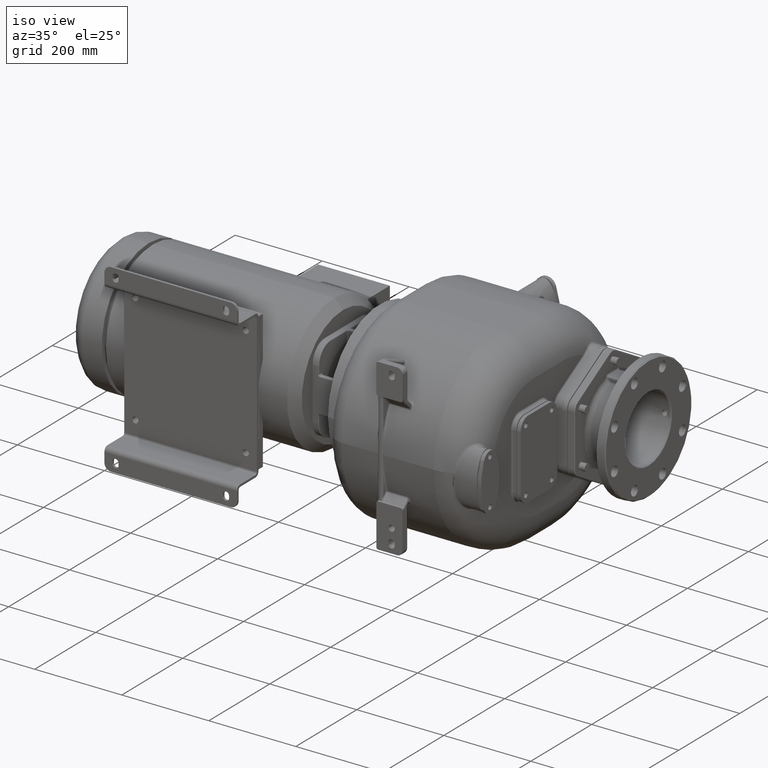
[diagram: clean part render]
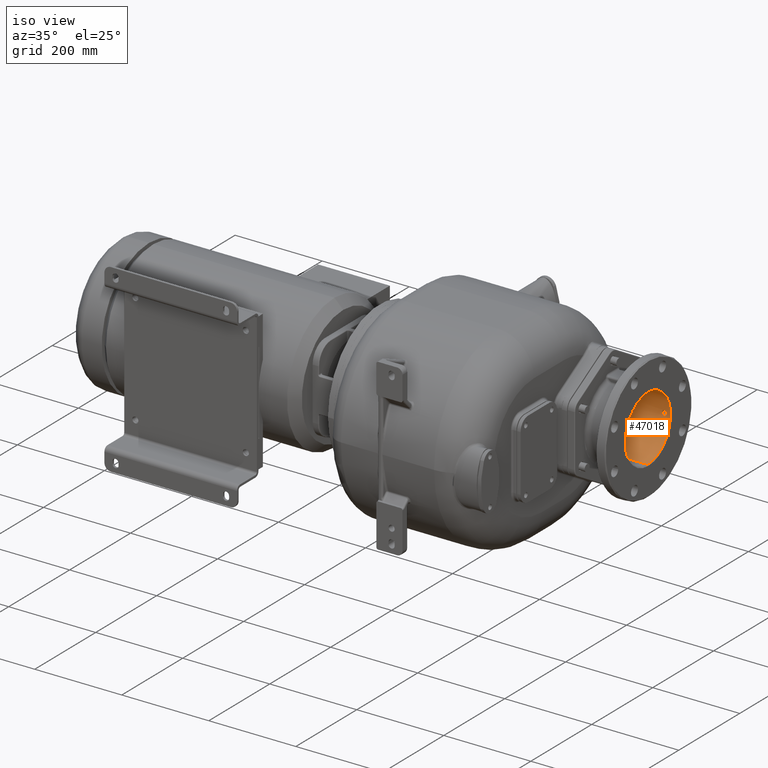
[diagram: same view with one face highlighted and labeled with its STEP entity id]
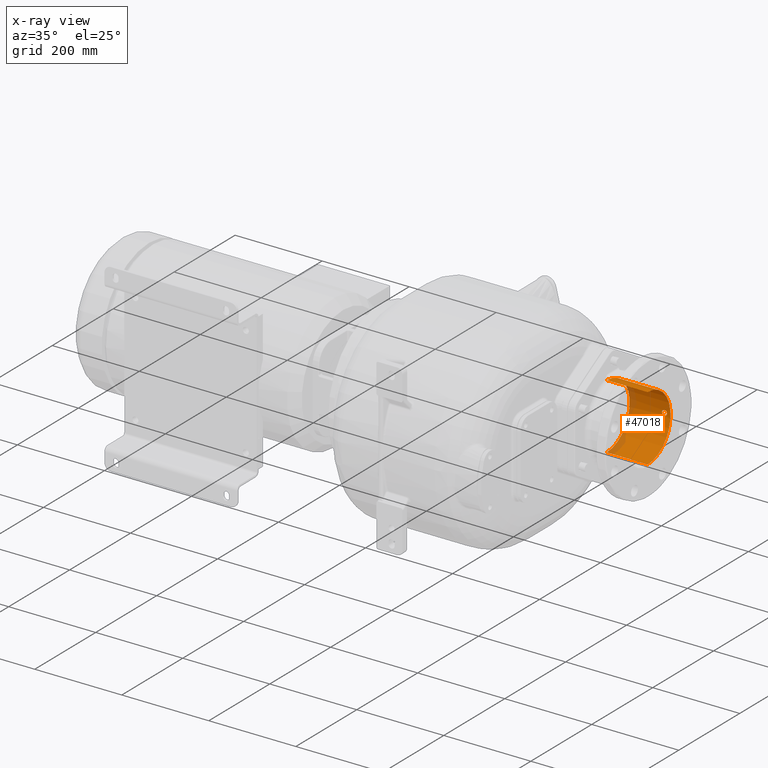
[diagram: x-ray of the same camera — body ghosted, the highlighted face saturated]
A machine part, iso view. The second image highlights one B-rep face of the part: STEP entity #47018.
The next image is the same camera in x-ray: the body ghosted, the highlighted face saturated — about 11% of this face is hidden behind the body in this view.
In plain terms, the highlighted cylindrical surface (partial cylindrical patch) has radius 75 mm, axis along (1, 0, 0).
Its self-contained STEP definition (entity closure, byte-faithful):
#43698=CARTESIAN_POINT('',(3.015E2,4.1E2,-2.6E1));
#43699=DIRECTION('',(1.E0,0.E0,0.E0));
#43700=DIRECTION('',(0.E0,0.E0,-1.E0));
#43701=AXIS2_PLACEMENT_3D('',#43698,#43699,#43700);
#43703=DIRECTION('',(-1.E0,0.E0,0.E0));
#43704=VECTOR('',#43703,9.4E1);
#43705=CARTESIAN_POINT('',(3.015E2,4.1E2,-1.01E2));
#43706=LINE('',#43705,#43704);
#43707=CARTESIAN_POINT('',(2.075E2,4.1E2,-2.6E1));
#43708=DIRECTION('',(-1.E0,0.E0,0.E0));
#43709=DIRECTION('',(0.E0,0.E0,1.E0));
#43710=AXIS2_PLACEMENT_3D('',#43707,#43708,#43709);
#43712=CARTESIAN_POINT('',(2.875E2,4.847675731852E2,-3.19E1));
#43713=CARTESIAN_POINT('',(2.874256253324E2,4.847675731852E2,-3.19E1));
#43714=CARTESIAN_POINT('',(2.872769971139E2,4.847677950349E2,
-3.189718962676E1));
#43715=CARTESIAN_POINT('',(2.870542748607E2,4.847687914458E2,
-3.188454900538E1));
#43716=CARTESIAN_POINT('',(2.868322025089E2,4.847704458884E2,
-3.186349993345E1));
#43717=CARTESIAN_POINT('',(2.866110566696E2,4.847727490731E2,
-3.183406984694E1));
#43718=CARTESIAN_POINT('',(2.863911509017E2,4.847756881395E2,
-3.179629614294E1));
#43719=CARTESIAN_POINT('',(2.861728012848E2,4.847792464365E2,
-3.175022985126E1));
#43720=CARTESIAN_POINT('',(2.859563192148E2,4.847834038050E2,
-3.169593316761E1));
#43721=CARTESIAN_POINT('',(2.857420072291E2,4.847881368035E2,
-3.163347784342E1));
#43722=CARTESIAN_POINT('',(2.855301690121E2,4.847934186559E2,
-3.156294746120E1));
#43723=CARTESIAN_POINT('',(2.853211020802E2,4.847992195555E2,
-3.148443521025E1));
#43724=CARTESIAN_POINT('',(2.851151171367E2,4.848055062294E2,
-3.139805199805E1));
#43725=CARTESIAN_POINT('',(2.849125111418E2,4.848122427986E2,
-3.130391737893E1));
#43726=CARTESIAN_POINT('',(2.847135742728E2,4.848193908697E2,
-3.120216073273E1));
#43727=CARTESIAN_POINT('',(2.845185943045E2,4.848269095712E2,-3.109292369E1));
#43728=CARTESIAN_POINT('',(2.843278514817E2,4.848347559711E2,
-3.097635721820E1));
#43729=CARTESIAN_POINT('',(2.841416357851E2,4.848428845377E2,
-3.085263341929E1));
#43730=CARTESIAN_POINT('',(2.839602183976E2,4.848512485343E2,
-3.072192878889E1));
#43731=CARTESIAN_POINT('',(2.837838635841E2,4.848597998581E2,
-3.058443002453E1));
#43732=CARTESIAN_POINT('',(2.836128292208E2,4.848684892538E2,
-3.044033502036E1));
#43733=CARTESIAN_POINT('',(2.834473639344E2,4.848772667399E2,
-3.028985011264E1));
#43734=CARTESIAN_POINT('',(2.832877208525E2,4.848860811060E2,
-3.013320416943E1));
#43735=CARTESIAN_POINT('',(2.831341310210E2,4.848948816069E2,
-2.997062457919E1));
#43736=CARTESIAN_POINT('',(2.829868176328E2,4.849036175407E2,
-2.980234857284E1));
#43737=CARTESIAN_POINT('',(2.828459939175E2,4.849122386285E2,
-2.962862168409E1));
#43738=CARTESIAN_POINT('',(2.827118629284E2,4.849206953184E2,
-2.944969672747E1));
#43739=CARTESIAN_POINT('',(2.825846261491E2,4.849289384811E2,
-2.926584729649E1));
#43740=CARTESIAN_POINT('',(2.824644628815E2,4.849369209937E2,
-2.907733965712E1));
#43741=CARTESIAN_POINT('',(2.823515434607E2,4.849445971936E2,
-2.888444848286E1));
#43742=CARTESIAN_POINT('',(2.822460262785E2,4.849519233101E2,
-2.868745280506E1));
#43743=CARTESIAN_POINT('',(2.821480596803E2,4.849588575771E2,
-2.848663836888E1));
#43744=CARTESIAN_POINT('',(2.820577852624E2,4.849653602019E2,
-2.828230731335E1));
#43745=CARTESIAN_POINT('',(2.819753250425E2,4.849713944994E2,
-2.807475005706E1));
#43746=CARTESIAN_POINT('',(2.819007915329E2,4.849769263830E2,
-2.786426376845E1));
#43747=CARTESIAN_POINT('',(2.818342850890E2,4.849819247288E2,
-2.765114625277E1));
#43748=CARTESIAN_POINT('',(2.817758964622E2,4.849863613457E2,
-2.743570253037E1));
#43749=CARTESIAN_POINT('',(2.817257063209E2,4.849902111481E2,
-2.721824853113E1));
#43750=CARTESIAN_POINT('',(2.816837796659E2,4.849934527142E2,
-2.699908628844E1));
#43751=CARTESIAN_POINT('',(2.816501717802E2,4.849960679440E2,
-2.677852347111E1));
#43752=CARTESIAN_POINT('',(2.816249265851E2,4.849980422725E2,
-2.655686548787E1));
#43753=CARTESIAN_POINT('',(2.816080781860E2,4.849993646215E2,
-2.633442717336E1));
#43754=CARTESIAN_POINT('',(2.815996488087E2,4.850000276148E2,
-2.611152748129E1));
#43755=CARTESIAN_POINT('',(2.815996488087E2,4.850000276148E2,
-2.588847251878E1));
#43756=CARTESIAN_POINT('',(2.816080781860E2,4.849993646215E2,
-2.566557282615E1));
#43757=CARTESIAN_POINT('',(2.816249265852E2,4.849980422725E2,
-2.544313451103E1));
#43758=CARTESIAN_POINT('',(2.816501717803E2,4.849960679440E2,
-2.522147652821E1));
#43759=CARTESIAN_POINT('',(2.816837796660E2,4.849934527142E2,
-2.500091371082E1));
#43760=CARTESIAN_POINT('',(2.817257063211E2,4.849902111481E2,
-2.478175146809E1));
#43761=CARTESIAN_POINT('',(2.817758964625E2,4.849863613457E2,
-2.456429746832E1));
#43762=CARTESIAN_POINT('',(2.818342850894E2,4.849819247287E2,
-2.434885374579E1));
#43763=CARTESIAN_POINT('',(2.819007915333E2,4.849769263830E2,
-2.413573623051E1));
#43764=CARTESIAN_POINT('',(2.819753250428E2,4.849713944993E2,
-2.392524994218E1));
#43765=CARTESIAN_POINT('',(2.820577852627E2,4.849653602019E2,
-2.371769268587E1));
#43766=CARTESIAN_POINT('',(2.821480596808E2,4.849588575771E2,
-2.351336162999E1));
#43767=CARTESIAN_POINT('',(2.822460262793E2,4.849519233100E2,
-2.331254719336E1));
#43768=CARTESIAN_POINT('',(2.823515434611E2,4.849445971935E2,
-2.311555151643E1));
#43769=CARTESIAN_POINT('',(2.824644628819E2,4.849369209937E2,
-2.292266034216E1));
#43770=CARTESIAN_POINT('',(2.825846261496E2,4.849289384811E2,
-2.273415270269E1));
#43771=CARTESIAN_POINT('',(2.827118629291E2,4.849206953184E2,
-2.255030327163E1));
#43772=CARTESIAN_POINT('',(2.828459939185E2,4.849122386284E2,
-2.237137831460E1));
#43773=CARTESIAN_POINT('',(2.829868176334E2,4.849036175407E2,
-2.219765142652E1));
#43774=CARTESIAN_POINT('',(2.831341310215E2,4.848948816068E2,
-2.202937542020E1));
#43775=CARTESIAN_POINT('',(2.832877208531E2,4.848860811059E2,
-2.186679582999E1));
#43776=CARTESIAN_POINT('',(2.834473639356E2,4.848772667399E2,
-2.171014988622E1));
#43777=CARTESIAN_POINT('',(2.836128292217E2,4.848684892537E2,
-2.155966497890E1));
#43778=CARTESIAN_POINT('',(2.837838635849E2,4.848597998581E2,
-2.141556997485E1));
#43779=CARTESIAN_POINT('',(2.839602183982E2,4.848512485343E2,
-2.127807121064E1));
#43780=CARTESIAN_POINT('',(2.841416357857E2,4.848428845377E2,
-2.114736658029E1));
#43781=CARTESIAN_POINT('',(2.843278514830E2,4.848347559711E2,
-2.102364278095E1));
#43782=CARTESIAN_POINT('',(2.845185943056E2,4.848269095712E2,
-2.090707630936E1));
#43783=CARTESIAN_POINT('',(2.847135742734E2,4.848193908697E2,
-2.079783926691E1));
#43784=CARTESIAN_POINT('',(2.849125111425E2,4.848122427986E2,
-2.069608262073E1));
#43785=CARTESIAN_POINT('',(2.851151171377E2,4.848055062294E2,
-2.060194800151E1));
#43786=CARTESIAN_POINT('',(2.853211020813E2,4.847992195555E2,
-2.051556478929E1));
#43787=CARTESIAN_POINT('',(2.855301690134E2,4.847934186559E2,
-2.043705253835E1));
#43788=CARTESIAN_POINT('',(2.857420072298E2,4.847881368034E2,
-2.036652215638E1));
#43789=CARTESIAN_POINT('',(2.859563192155E2,4.847834038050E2,
-2.030406683220E1));
#43790=CARTESIAN_POINT('',(2.861728012856E2,4.847792464365E2,
-2.024977014855E1));
#43791=CARTESIAN_POINT('',(2.863911509036E2,4.847756881395E2,
-2.020370385671E1));
#43792=CARTESIAN_POINT('',(2.866110566703E2,4.847727490731E2,
-2.016593015296E1));
#43793=CARTESIAN_POINT('',(2.868322025098E2,4.847704458884E2,
-2.013650006645E1));
#43794=CARTESIAN_POINT('',(2.870542748614E2,4.847687914458E2,
-2.011545099456E1));
#43795=CARTESIAN_POINT('',(2.872769971148E2,4.847677950348E2,
-2.010281037321E1));
#43796=CARTESIAN_POINT('',(2.874256253328E2,4.847675731852E2,-2.01E1));
#43797=CARTESIAN_POINT('',(2.875E2,4.847675731852E2,-2.01E1));
#43799=CARTESIAN_POINT('',(2.875E2,4.847675731852E2,-2.01E1));
#43800=CARTESIAN_POINT('',(2.875743746676E2,4.847675731852E2,-2.01E1));
#43801=CARTESIAN_POINT('',(2.877230028861E2,4.847677950349E2,
-2.010281037324E1));
#43802=CARTESIAN_POINT('',(2.879457251393E2,4.847687914458E2,
-2.011545099462E1));
#43803=CARTESIAN_POINT('',(2.881677974911E2,4.847704458884E2,
-2.013650006655E1));
#43804=CARTESIAN_POINT('',(2.883889433304E2,4.847727490731E2,
-2.016593015306E1));
#43805=CARTESIAN_POINT('',(2.886088490982E2,4.847756881395E2,
-2.020370385705E1));
#43806=CARTESIAN_POINT('',(2.888271987152E2,4.847792464365E2,
-2.024977014873E1));
#43807=CARTESIAN_POINT('',(2.890436807852E2,4.847834038050E2,
-2.030406683239E1));
#43808=CARTESIAN_POINT('',(2.892579927708E2,4.847881368035E2,
-2.036652215657E1));
#43809=CARTESIAN_POINT('',(2.894698309878E2,4.847934186559E2,
-2.043705253878E1));
#43810=CARTESIAN_POINT('',(2.896788979197E2,4.847992195555E2,
-2.051556478972E1));
#43811=CARTESIAN_POINT('',(2.898848828632E2,4.848055062294E2,
-2.060194800192E1));
#43812=CARTESIAN_POINT('',(2.900874888581E2,4.848122427986E2,
-2.069608262105E1));
#43813=CARTESIAN_POINT('',(2.902864257272E2,4.848193908697E2,
-2.079783926724E1));
#43814=CARTESIAN_POINT('',(2.904814056954E2,4.848269095712E2,
-2.090707630996E1));
#43815=CARTESIAN_POINT('',(2.906721485182E2,4.848347559711E2,
-2.102364278174E1));
#43816=CARTESIAN_POINT('',(2.908583642149E2,4.848428845377E2,
-2.114736658067E1));
#43817=CARTESIAN_POINT('',(2.910397816024E2,4.848512485343E2,
-2.127807121107E1));
#43818=CARTESIAN_POINT('',(2.912161364158E2,4.848597998581E2,
-2.141556997542E1));
#43819=CARTESIAN_POINT('',(2.913871707791E2,4.848684892538E2,
-2.155966497956E1));
#43820=CARTESIAN_POINT('',(2.915526360655E2,4.848772667399E2,
-2.171014988726E1));
#43821=CARTESIAN_POINT('',(2.917122791474E2,4.848860811060E2,
-2.186679583050E1));
#43822=CARTESIAN_POINT('',(2.918658689790E2,4.848948816069E2,
-2.202937542075E1));
#43823=CARTESIAN_POINT('',(2.920131823671E2,4.849036175407E2,
-2.219765142708E1));
#43824=CARTESIAN_POINT('',(2.921540060824E2,4.849122386285E2,
-2.237137831577E1));
#43825=CARTESIAN_POINT('',(2.922881370715E2,4.849206953184E2,
-2.255030327240E1));
#43826=CARTESIAN_POINT('',(2.924153738508E2,4.849289384811E2,
-2.273415270342E1));
#43827=CARTESIAN_POINT('',(2.925355371184E2,4.849369209937E2,
-2.292266034279E1));
#43828=CARTESIAN_POINT('',(2.926484565393E2,4.849445971936E2,
-2.311555151704E1));
#43829=CARTESIAN_POINT('',(2.927539737214E2,4.849519233101E2,
-2.331254719474E1));
#43830=CARTESIAN_POINT('',(2.928519403196E2,4.849588575771E2,
-2.351336163096E1));
#43831=CARTESIAN_POINT('',(2.929422147376E2,4.849653602019E2,
-2.371769268653E1));
#43832=CARTESIAN_POINT('',(2.930246749575E2,4.849713944994E2,
-2.392524994282E1));
#43833=CARTESIAN_POINT('',(2.930992084670E2,4.849769263830E2,
-2.413573623141E1));
#43834=CARTESIAN_POINT('',(2.931657149109E2,4.849819247288E2,
-2.434885374696E1));
#43835=CARTESIAN_POINT('',(2.932241035377E2,4.849863613457E2,
-2.456429746944E1));
#43836=CARTESIAN_POINT('',(2.932742936791E2,4.849902111481E2,
-2.478175146874E1));
#43837=CARTESIAN_POINT('',(2.933162203341E2,4.849934527142E2,
-2.500091371145E1));
#43838=CARTESIAN_POINT('',(2.933498282198E2,4.849960679440E2,
-2.522147652881E1));
#43839=CARTESIAN_POINT('',(2.933750734149E2,4.849980422725E2,
-2.544313451207E1));
#43840=CARTESIAN_POINT('',(2.933919218140E2,4.849993646215E2,
-2.566557282658E1));
#43841=CARTESIAN_POINT('',(2.934003511913E2,4.850000276148E2,
-2.588847251885E1));
#43842=CARTESIAN_POINT('',(2.934003511913E2,4.850000276148E2,
-2.611152748140E1));
#43843=CARTESIAN_POINT('',(2.933919218140E2,4.849993646215E2,
-2.633442717404E1));
#43844=CARTESIAN_POINT('',(2.933750734148E2,4.849980422725E2,
-2.655686548932E1));
#43845=CARTESIAN_POINT('',(2.933498282196E2,4.849960679439E2,
-2.677852347196E1));
#43846=CARTESIAN_POINT('',(2.933162203340E2,4.849934527142E2,
-2.699908628932E1));
#43847=CARTESIAN_POINT('',(2.932742936789E2,4.849902111481E2,
-2.721824853205E1));
#43848=CARTESIAN_POINT('',(2.932241035374E2,4.849863613457E2,
-2.743570253186E1));
#43849=CARTESIAN_POINT('',(2.931657149105E2,4.849819247287E2,
-2.765114625449E1));
#43850=CARTESIAN_POINT('',(2.930992084667E2,4.849769263830E2,
-2.786426376962E1));
#43851=CARTESIAN_POINT('',(2.930246749572E2,4.849713944993E2,
-2.807475005794E1));
#43852=CARTESIAN_POINT('',(2.929422147373E2,4.849653602019E2,
-2.828230731424E1));
#43853=CARTESIAN_POINT('',(2.928519403191E2,4.849588575770E2,
-2.848663837017E1));
#43854=CARTESIAN_POINT('',(2.927539737206E2,4.849519233100E2,
-2.868745280685E1));
#43855=CARTESIAN_POINT('',(2.926484565389E2,4.849445971935E2,
-2.888444848367E1));
#43856=CARTESIAN_POINT('',(2.925355371180E2,4.849369209937E2,
-2.907733965793E1));
#43857=CARTESIAN_POINT('',(2.924153738503E2,4.849289384811E2,
-2.926584729740E1));
#43858=CARTESIAN_POINT('',(2.922881370708E2,4.849206953184E2,
-2.944969672850E1));
#43859=CARTESIAN_POINT('',(2.921540060813E2,4.849122386284E2,
-2.962862168554E1));
#43860=CARTESIAN_POINT('',(2.920131823666E2,4.849036175407E2,
-2.980234857356E1));
#43861=CARTESIAN_POINT('',(2.918658689784E2,4.848948816068E2,
-2.997062457987E1));
#43862=CARTESIAN_POINT('',(2.917122791469E2,4.848860811059E2,
-3.013320417008E1));
#43863=CARTESIAN_POINT('',(2.915526360643E2,4.848772667398E2,
-3.028985011388E1));
#43864=CARTESIAN_POINT('',(2.913871707782E2,4.848684892537E2,
-3.044033502118E1));
#43865=CARTESIAN_POINT('',(2.912161364151E2,4.848597998581E2,
-3.058443002519E1));
#43866=CARTESIAN_POINT('',(2.910397816017E2,4.848512485342E2,
-3.072192878941E1));
#43867=CARTESIAN_POINT('',(2.908583642142E2,4.848428845377E2,
-3.085263341975E1));
#43868=CARTESIAN_POINT('',(2.906721485169E2,4.848347559711E2,
-3.097635721911E1));
#43869=CARTESIAN_POINT('',(2.904814056943E2,4.848269095712E2,
-3.109292369068E1));
#43870=CARTESIAN_POINT('',(2.902864257265E2,4.848193908697E2,
-3.120216073311E1));
#43871=CARTESIAN_POINT('',(2.900874888574E2,4.848122427986E2,
-3.130391737929E1));
#43872=CARTESIAN_POINT('',(2.898848828622E2,4.848055062293E2,
-3.139805199852E1));
#43873=CARTESIAN_POINT('',(2.896788979186E2,4.847992195555E2,
-3.148443521074E1));
#43874=CARTESIAN_POINT('',(2.894698309865E2,4.847934186558E2,
-3.156294746166E1));
#43875=CARTESIAN_POINT('',(2.892579927702E2,4.847881368034E2,
-3.163347784363E1));
#43876=CARTESIAN_POINT('',(2.890436807845E2,4.847834038050E2,
-3.169593316781E1));
#43877=CARTESIAN_POINT('',(2.888271987144E2,4.847792464365E2,
-3.175022985146E1));
#43878=CARTESIAN_POINT('',(2.886088490964E2,4.847756881395E2,
-3.179629614330E1));
#43879=CARTESIAN_POINT('',(2.883889433297E2,4.847727490731E2,
-3.183406984704E1));
#43880=CARTESIAN_POINT('',(2.881677974902E2,4.847704458884E2,
-3.186349993356E1));
#43881=CARTESIAN_POINT('',(2.879457251386E2,4.847687914458E2,
-3.188454900544E1));
#43882=CARTESIAN_POINT('',(2.877230028852E2,4.847677950348E2,
-3.189718962679E1));
#43883=CARTESIAN_POINT('',(2.875743746672E2,4.847675731852E2,-3.19E1));
#43884=CARTESIAN_POINT('',(2.875E2,4.847675731852E2,-3.19E1));
#43899=DIRECTION('',(-1.E0,0.E0,0.E0));
#43900=VECTOR('',#43899,9.4E1);
#43901=CARTESIAN_POINT('',(3.015E2,4.1E2,4.9E1));
#43902=LINE('',#43901,#43900);
#46346=CARTESIAN_POINT('',(3.015E2,4.1E2,-1.01E2));
#46347=CARTESIAN_POINT('',(3.015E2,4.1E2,4.9E1));
#46348=VERTEX_POINT('',#46346);
#46349=VERTEX_POINT('',#46347);
#46354=CARTESIAN_POINT('',(2.075E2,4.1E2,4.9E1));
#46355=CARTESIAN_POINT('',(2.075E2,4.1E2,-1.01E2));
#46356=VERTEX_POINT('',#46354);
#46357=VERTEX_POINT('',#46355);
#46362=VERTEX_POINT('',#43712);
#46363=VERTEX_POINT('',#43797);
#46998=CARTESIAN_POINT('',(3.065E2,4.1E2,-2.6E1));
#46999=DIRECTION('',(1.E0,0.E0,0.E0));
#47000=DIRECTION('',(0.E0,0.E0,-1.E0));
#47001=AXIS2_PLACEMENT_3D('',#46998,#46999,#47000);
#47002=CYLINDRICAL_SURFACE('',#47001,7.5E1);
#47004=ORIENTED_EDGE('',*,*,#47003,.F.);
#47006=ORIENTED_EDGE('',*,*,#47005,.T.);
#47007=ORIENTED_EDGE('',*,*,#46988,.F.);
#47009=ORIENTED_EDGE('',*,*,#47008,.F.);
#47010=EDGE_LOOP('',(#47004,#47006,#47007,#47009));
#47011=FACE_OUTER_BOUND('',#47010,.F.);
#47013=ORIENTED_EDGE('',*,*,#47012,.F.);
#47015=ORIENTED_EDGE('',*,*,#47014,.F.);
#47016=EDGE_LOOP('',(#47013,#47015));
#47017=FACE_BOUND('',#47016,.F.);
#47018=ADVANCED_FACE('',(#47011,#47017),#47002,.F.);
#43702=CIRCLE('',#43701,7.5E1);
#43711=CIRCLE('',#43710,7.5E1);
#43798=B_SPLINE_CURVE_WITH_KNOTS('',3,(#43712,#43713,#43714,#43715,#43716,
#43717,#43718,#43719,#43720,#43721,#43722,#43723,#43724,#43725,#43726,#43727,
#43728,#43729,#43730,#43731,#43732,#43733,#43734,#43735,#43736,#43737,#43738,
#43739,#43740,#43741,#43742,#43743,#43744,#43745,#43746,#43747,#43748,#43749,
#43750,#43751,#43752,#43753,#43754,#43755,#43756,#43757,#43758,#43759,#43760,
#43761,#43762,#43763,#43764,#43765,#43766,#43767,#43768,#43769,#43770,#43771,
#43772,#43773,#43774,#43775,#43776,#43777,#43778,#43779,#43780,#43781,#43782,
#43783,#43784,#43785,#43786,#43787,#43788,#43789,#43790,#43791,#43792,#43793,
#43794,#43795,#43796,#43797),.UNSPECIFIED.,.F.,.F.,(4,1,1,1,1,1,1,1,1,1,1,1,1,1,
1,1,1,1,1,1,1,1,1,1,1,1,1,1,1,1,1,1,1,1,1,1,1,1,1,1,1,1,1,1,1,1,1,1,1,1,1,1,1,1,
1,1,1,1,1,1,1,1,1,1,1,1,1,1,1,1,1,1,1,1,1,1,1,1,1,1,1,1,1,4),(0.E0,
1.204819277108E-2,2.409638554217E-2,3.614457831325E-2,4.819277108434E-2,
6.024096385542E-2,7.228915662651E-2,8.433734939759E-2,9.638554216867E-2,
1.084337349398E-1,1.204819277108E-1,1.325301204819E-1,1.445783132530E-1,
1.566265060241E-1,1.686746987952E-1,1.807228915663E-1,1.927710843373E-1,
2.048192771084E-1,2.168674698795E-1,2.289156626506E-1,2.409638554217E-1,
2.530120481928E-1,2.650602409639E-1,2.771084337349E-1,2.891566265060E-1,
3.012048192771E-1,3.132530120482E-1,3.253012048193E-1,3.373493975904E-1,
3.493975903614E-1,3.614457831325E-1,3.734939759036E-1,3.855421686747E-1,
3.975903614458E-1,4.096385542169E-1,4.216867469880E-1,4.337349397590E-1,
4.457831325301E-1,4.578313253012E-1,4.698795180723E-1,4.819277108434E-1,
4.939759036145E-1,5.060240963855E-1,5.180722891566E-1,5.301204819277E-1,
5.421686746988E-1,5.542168674699E-1,5.662650602410E-1,5.783132530120E-1,
5.903614457831E-1,6.024096385542E-1,6.144578313253E-1,6.265060240964E-1,
6.385542168675E-1,6.506024096386E-1,6.626506024096E-1,6.746987951807E-1,
6.867469879518E-1,6.987951807229E-1,7.108433734940E-1,7.228915662651E-1,
7.349397590361E-1,7.469879518072E-1,7.590361445783E-1,7.710843373494E-1,
7.831325301205E-1,7.951807228916E-1,8.072289156627E-1,8.192771084337E-1,
8.313253012048E-1,8.433734939759E-1,8.554216867470E-1,8.674698795181E-1,
8.795180722892E-1,8.915662650602E-1,9.036144578313E-1,9.156626506024E-1,
9.277108433735E-1,9.397590361446E-1,9.518072289157E-1,9.638554216867E-1,
9.759036144578E-1,9.879518072289E-1,1.E0),.UNSPECIFIED.);
#43885=B_SPLINE_CURVE_WITH_KNOTS('',3,(#43799,#43800,#43801,#43802,#43803,
#43804,#43805,#43806,#43807,#43808,#43809,#43810,#43811,#43812,#43813,#43814,
#43815,#43816,#43817,#43818,#43819,#43820,#43821,#43822,#43823,#43824,#43825,
#43826,#43827,#43828,#43829,#43830,#43831,#43832,#43833,#43834,#43835,#43836,
#43837,#43838,#43839,#43840,#43841,#43842,#43843,#43844,#43845,#43846,#43847,
#43848,#43849,#43850,#43851,#43852,#43853,#43854,#43855,#43856,#43857,#43858,
#43859,#43860,#43861,#43862,#43863,#43864,#43865,#43866,#43867,#43868,#43869,
#43870,#43871,#43872,#43873,#43874,#43875,#43876,#43877,#43878,#43879,#43880,
#43881,#43882,#43883,#43884),.UNSPECIFIED.,.F.,.F.,(4,1,1,1,1,1,1,1,1,1,1,1,1,1,
1,1,1,1,1,1,1,1,1,1,1,1,1,1,1,1,1,1,1,1,1,1,1,1,1,1,1,1,1,1,1,1,1,1,1,1,1,1,1,1,
1,1,1,1,1,1,1,1,1,1,1,1,1,1,1,1,1,1,1,1,1,1,1,1,1,1,1,1,1,4),(0.E0,
1.204819277108E-2,2.409638554217E-2,3.614457831325E-2,4.819277108434E-2,
6.024096385542E-2,7.228915662651E-2,8.433734939759E-2,9.638554216867E-2,
1.084337349398E-1,1.204819277108E-1,1.325301204819E-1,1.445783132530E-1,
1.566265060241E-1,1.686746987952E-1,1.807228915663E-1,1.927710843373E-1,
2.048192771084E-1,2.168674698795E-1,2.289156626506E-1,2.409638554217E-1,
2.530120481928E-1,2.650602409639E-1,2.771084337349E-1,2.891566265060E-1,
3.012048192771E-1,3.132530120482E-1,3.253012048193E-1,3.373493975904E-1,
3.493975903614E-1,3.614457831325E-1,3.734939759036E-1,3.855421686747E-1,
3.975903614458E-1,4.096385542169E-1,4.216867469880E-1,4.337349397590E-1,
4.457831325301E-1,4.578313253012E-1,4.698795180723E-1,4.819277108434E-1,
4.939759036145E-1,5.060240963855E-1,5.180722891566E-1,5.301204819277E-1,
5.421686746988E-1,5.542168674699E-1,5.662650602410E-1,5.783132530120E-1,
5.903614457831E-1,6.024096385542E-1,6.144578313253E-1,6.265060240964E-1,
6.385542168675E-1,6.506024096386E-1,6.626506024096E-1,6.746987951807E-1,
6.867469879518E-1,6.987951807229E-1,7.108433734940E-1,7.228915662651E-1,
7.349397590361E-1,7.469879518072E-1,7.590361445783E-1,7.710843373494E-1,
7.831325301205E-1,7.951807228916E-1,8.072289156627E-1,8.192771084337E-1,
8.313253012048E-1,8.433734939759E-1,8.554216867470E-1,8.674698795181E-1,
8.795180722892E-1,8.915662650602E-1,9.036144578313E-1,9.156626506024E-1,
9.277108433735E-1,9.397590361446E-1,9.518072289157E-1,9.638554216867E-1,
9.759036144578E-1,9.879518072289E-1,1.E0),.UNSPECIFIED.);
#46988=EDGE_CURVE('',#46356,#46357,#43711,.T.);
#47003=EDGE_CURVE('',#46348,#46349,#43702,.T.);
#47005=EDGE_CURVE('',#46348,#46357,#43706,.T.);
#47008=EDGE_CURVE('',#46349,#46356,#43902,.T.);
#47012=EDGE_CURVE('',#46362,#46363,#43798,.T.);
#47014=EDGE_CURVE('',#46363,#46362,#43885,.T.);